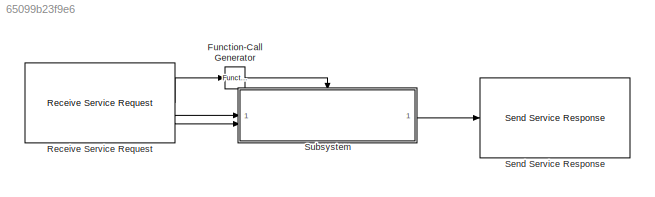
MODEL slx_65099b23f9e6
KIND model
CONFIG AbsTol = auto
CONFIG EnableMultiTasking = off
CONFIG FixedStep = auto
CONFIG MaxStep = auto
CONFIG MinStep = auto
CONFIG RelTol = 1e-3
CONFIG SampleTimeConstraint = Unconstrained
CONFIG SolverName = FixedStepDiscrete
CONFIG StartTime = 0.0
CONFIG StopTime = inf
WORKSPACE source: mxarray member
WORKSPACE SL_ROS_VariableLengthArrays_MaxSizes: object (value not decoded)
BLOCK [Reference] Function-Call Generator  REF=simulink/Ports &
Subsystems/Function-Call
Generator
  SourceBlock = simulink/Ports &\nSubsystems/Function-Call\nGenerator
  SourceType = Function-Call Generator
BLOCK [Reference] Receive Service Request  REF=ros2lib/Receive Service Request  (lib defined in slx_3c1549211f48)
  LibrarySourceBlock = ros2lib/Receive Request
  SourceBlock = ros2lib/Receive Service Request
  SourceType = ROS2 Receive Service Request
BLOCK [Reference] Send Service Response  REF=ros2lib/Send Service Response  (lib defined in slx_3c1549211f48)
  LibrarySourceBlock = ros2lib/Send Response
  SourceBlock = ros2lib/Send Service Response
  SourceType = ROS2 Send Service Response
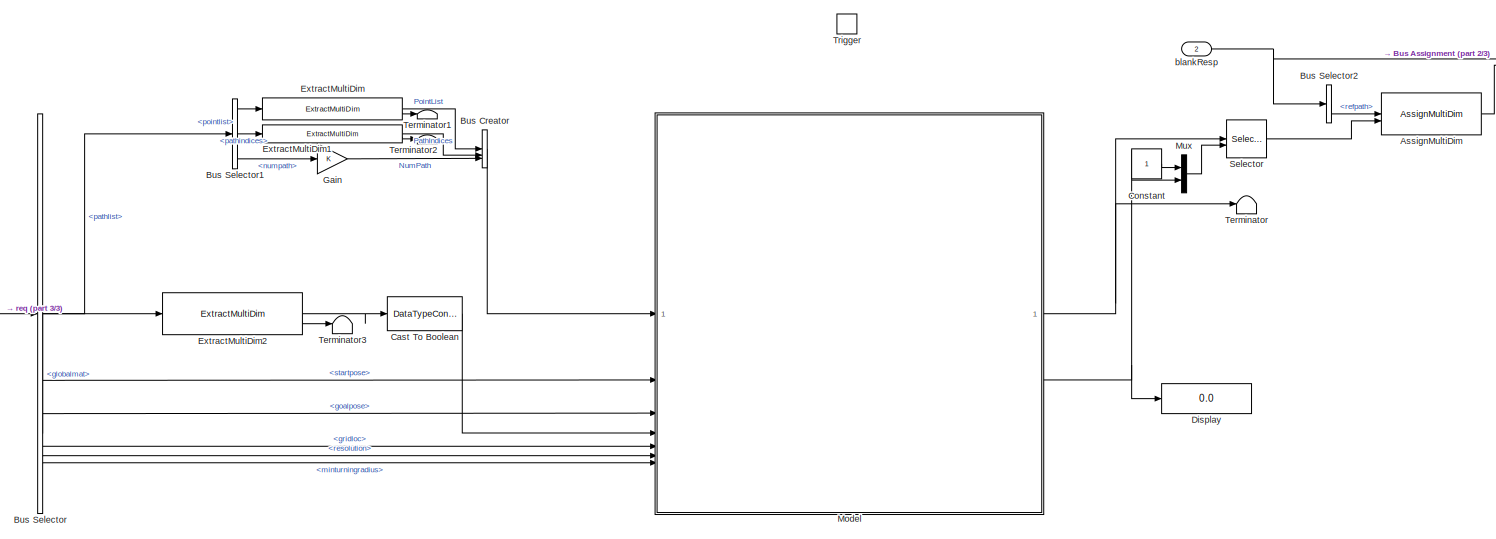
[diagram: Subsystem - part 1/3, most of the canvas]
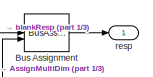
[diagram: Subsystem - part 2/3, top right region]
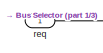
[diagram: Subsystem - part 3/3, middle left region]
BLOCK [SubSystem] Subsystem
BLOCK [Reference] Subsystem/AssignMultiDim  REF=roshelperlib/AssignMultiDim  (lib defined in slx_3328ea0e13a5)
  SourceBlock = roshelperlib/AssignMultiDim
  SourceType = SubSystem
BLOCK [BusAssignment] Subsystem/Bus Assignment
  AssignedSignals = refpath
BLOCK [BusCreator] Subsystem/Bus Creator
  DisplayOption = bar
  InheritFromInputs = on
  Inputs = 3
BLOCK [BusSelector] Subsystem/Bus Selector
  OutputSignals = pathlist,startpose,goalpose,globalmat,gridloc,resolution,tuneableterrainawareparams.minturningradius
BLOCK [BusSelector] Subsystem/Bus Selector1
  OutputSignals = pointlist,pathindices,numpath
BLOCK [BusSelector] Subsystem/Bus Selector2
  OutputSignals = refpath
BLOCK [DataTypeConversion] Subsystem/Cast To Boolean
  OutDataTypeStr = boolean
  RndMeth = Floor
  SaturateOnIntegerOverflow = off
BLOCK [Constant] Subsystem/Constant
BLOCK [Display] Subsystem/Display
  Decimation = 1
BLOCK [Reference] Subsystem/ExtractMultiDim  REF=roshelperlib/ExtractMultiDim  (lib defined in slx_3328ea0e13a5)
  SourceBlock = roshelperlib/ExtractMultiDim
BLOCK [Reference] Subsystem/ExtractMultiDim1  REF=roshelperlib/ExtractMultiDim  (lib defined in slx_3328ea0e13a5)
  SourceBlock = roshelperlib/ExtractMultiDim
BLOCK [Reference] Subsystem/ExtractMultiDim2  REF=roshelperlib/ExtractMultiDim  (lib defined in slx_3328ea0e13a5)
  SourceBlock = roshelperlib/ExtractMultiDim
BLOCK [Gain] Subsystem/Gain
BLOCK [ModelReference] Subsystem/Model
  ModelNameDialog = planRoadNetworkPath.slx
  ModelReferenceVersion = 1.0
BLOCK [Mux] Subsystem/Mux
  DisplayOption = bar
  Inputs = 2
BLOCK [Selector] Subsystem/Selector
  IndexOptions = Starting and ending indices (port),Select all
  Indices = [1 3],1
  InputPortWidth = 3
  NumberOfDimensions = 2
  OutputSizes = 1,1
BLOCK [Terminator] Subsystem/Terminator
BLOCK [Terminator] Subsystem/Terminator1
BLOCK [Terminator] Subsystem/Terminator2
BLOCK [Terminator] Subsystem/Terminator3
BLOCK [TriggerPort] Subsystem/Trigger
  OutputDataType = int8
  PortDimensions = 1
  StatesWhenEnabling = held
  TriggerType = function-call
  VariantControl = (inherit)
BLOCK [Inport] Subsystem/blankResp
  Port = 2
BLOCK [Inport] Subsystem/req
BLOCK [Outport] Subsystem/resp
LINE Function-Call Generator:1 -> Subsystem:trigger
LINE Receive Service Request:1 -> Function-Call Generator:1
LINE Receive Service Request:2 -> Subsystem:1
LINE Receive Service Request:3 -> Subsystem:2
LINE Subsystem/AssignMultiDim:1 -> Subsystem/Bus Assignment:2
LINE Subsystem/Bus Assignment:1 -> Subsystem/resp:1
LINE Subsystem/Bus Creator:1 -> Subsystem/Model:1
LINE Subsystem/Bus Selector1:1 -> Subsystem/ExtractMultiDim:1
LINE Subsystem/Bus Selector1:2 -> Subsystem/ExtractMultiDim1:1
LINE Subsystem/Bus Selector1:3 -> Subsystem/Gain:1
LINE Subsystem/Bus Selector2:1 -> Subsystem/AssignMultiDim:1
LINE Subsystem/Bus Selector:1 -> Subsystem/Bus Selector1:1
LINE Subsystem/Bus Selector:2 -> Subsystem/Model:2
LINE Subsystem/Bus Selector:3 -> Subsystem/Model:3
LINE Subsystem/Bus Selector:4 -> Subsystem/ExtractMultiDim2:1
LINE Subsystem/Bus Selector:5 -> Subsystem/Model:5
LINE Subsystem/Bus Selector:6 -> Subsystem/Model:6
LINE Subsystem/Bus Selector:7 -> Subsystem/Model:7
LINE Subsystem/Cast To Boolean:1 -> Subsystem/Model:4
LINE Subsystem/Constant:1 -> Subsystem/Mux:1
LINE Subsystem/ExtractMultiDim1:1 -> Subsystem/Bus Creator:2
LINE Subsystem/ExtractMultiDim1:2 -> Subsystem/Terminator2:1
LINE Subsystem/ExtractMultiDim2:1 -> Subsystem/Cast To Boolean:1
LINE Subsystem/ExtractMultiDim2:2 -> Subsystem/Terminator3:1
LINE Subsystem/ExtractMultiDim:1 -> Subsystem/Bus Creator:1
LINE Subsystem/ExtractMultiDim:2 -> Subsystem/Terminator1:1
LINE Subsystem/Gain:1 -> Subsystem/Bus Creator:3
NET Subsystem/Model:1 -> Subsystem/Selector:1, Subsystem/Terminator:1
NET Subsystem/Model:2 -> Subsystem/Display:1, Subsystem/Mux:2
LINE Subsystem/Mux:1 -> Subsystem/Selector:2
LINE Subsystem/Selector:1 -> Subsystem/AssignMultiDim:2
NET Subsystem/blankResp:1 -> Subsystem/Bus Assignment:1, Subsystem/Bus Selector2:1
LINE Subsystem/req:1 -> Subsystem/Bus Selector:1
LINE Subsystem:1 -> Send Service Response:1
note: NET lines group one-source signal fan-out (src -> all destinations, sorted); 1:1 wires keep LINE
